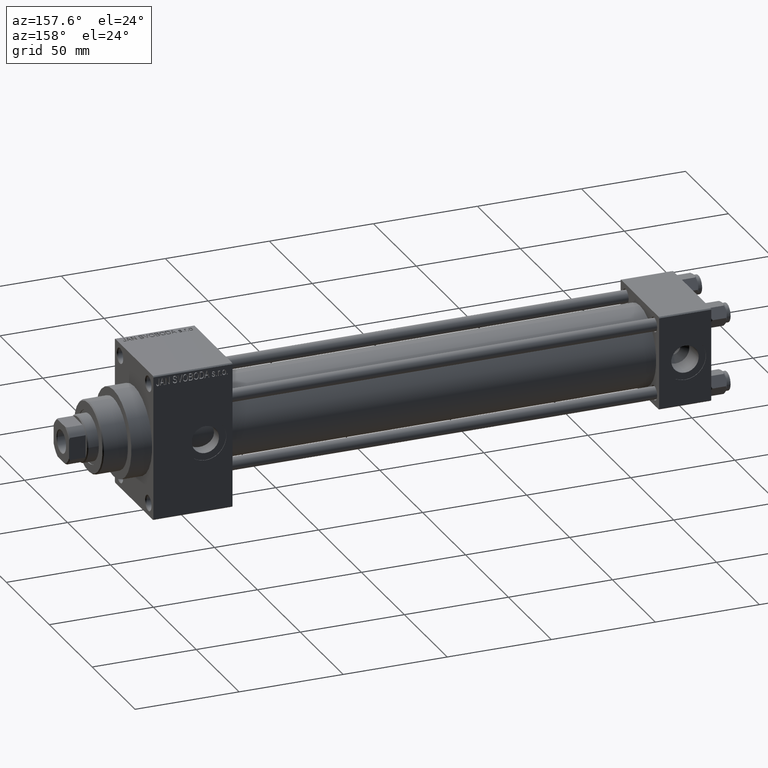
[diagram: clean part render]
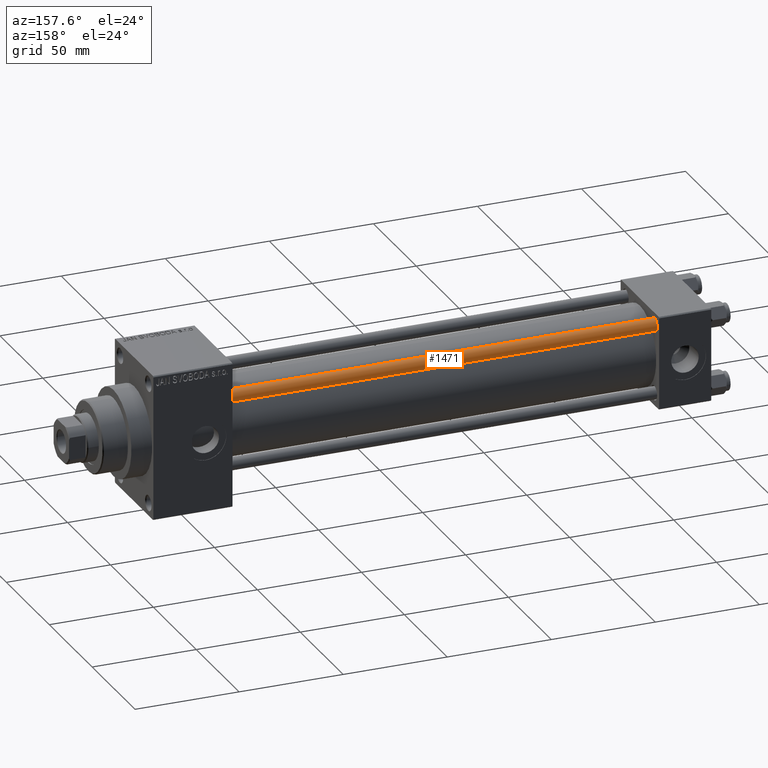
[diagram: same view with one face highlighted and labeled with its STEP entity id]
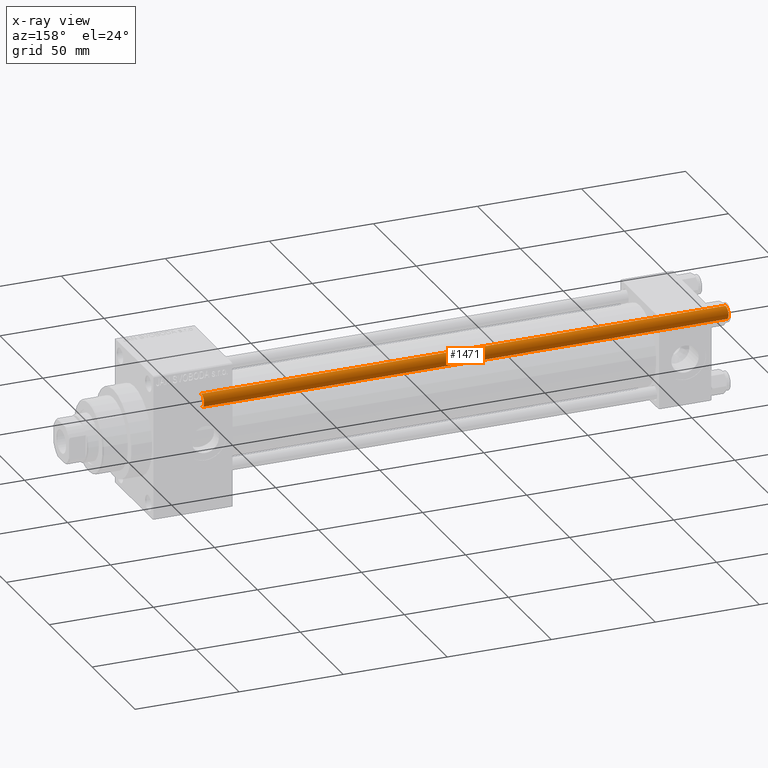
[diagram: x-ray of the same camera — body ghosted, the highlighted face saturated]
A machine part, auxiliary view. The second image highlights one B-rep face of the part: STEP entity #1471.
The next image is the same camera in x-ray: the body ghosted, the highlighted face saturated — about 0% of this face is hidden behind the body in this view.
In plain terms, the highlighted cylindrical surface (edge-blend (fillet) strip) has radius 3 mm, axis along (-1, -0, 0).
Its self-contained STEP definition (entity closure, byte-faithful):
#207 = AXIS2_PLACEMENT_3D ( 'NONE', #10874, #37432, #37679 ) ;
#311 = DIRECTION ( 'NONE',  ( 0.000000000000000000, 0.000000000000000000, -1.000000000000000000 ) ) ;
#509 = VERTEX_POINT ( 'NONE', #5020 ) ;
#1273 = EDGE_CURVE ( 'NONE', #509, #39043, #43670, .T. ) ;
#1471 = ADVANCED_FACE ( 'NONE', ( #10431 ), #36508, .T. ) ;
#2990 = DIRECTION ( 'NONE',  ( -0.000000000000000000, -0.000000000000000000, -1.000000000000000000 ) ) ;
#5020 = CARTESIAN_POINT ( 'NONE',  ( -3.000000000000000444, 0.000000000000000000, 252.4999999999999432 ) ) ;
#6737 = EDGE_CURVE ( 'NONE', #39043, #10309, #11516, .T. ) ;
#6899 = CARTESIAN_POINT ( 'NONE',  ( -3.000000000000000444, 0.000000000000000000, 253.0000000000000000 ) ) ;
#9937 = ORIENTED_EDGE ( 'NONE', *, *, #6737, .T. ) ;
#10309 = VERTEX_POINT ( 'NONE', #19013 ) ;
#10431 = FACE_OUTER_BOUND ( 'NONE', #43819, .T. ) ;
#10874 = CARTESIAN_POINT ( 'NONE',  ( 0.000000000000000000, 0.000000000000000000, 0.5000000000000559552 ) ) ;
#10977 = DIRECTION ( 'NONE',  ( 1.000000000000000000, 0.000000000000000000, 0.000000000000000000 ) ) ;
#11162 = VERTEX_POINT ( 'NONE', #17267 ) ;
#11516 = LINE ( 'NONE', #15977, #23434 ) ;
#15430 = CARTESIAN_POINT ( 'NONE',  ( 0.000000000000000000, 0.000000000000000000, 252.4999999999999432 ) ) ;
#15977 = CARTESIAN_POINT ( 'NONE',  ( 3.000000000000000444, 3.673940397442060361E-16, 253.0000000000000000 ) ) ;
#17267 = CARTESIAN_POINT ( 'NONE',  ( -3.000000000000000444, 0.000000000000000000, 0.5000000000000559552 ) ) ;
#17613 = ORIENTED_EDGE ( 'NONE', *, *, #1273, .T. ) ;
#18296 = DIRECTION ( 'NONE',  ( -0.000000000000000000, -0.000000000000000000, -1.000000000000000000 ) ) ;
#19013 = CARTESIAN_POINT ( 'NONE',  ( 3.000000000000000444, 3.673940397442060361E-16, 0.5000000000000559552 ) ) ;
#20220 = ORIENTED_EDGE ( 'NONE', *, *, #26487, .F. ) ;
#23434 = VECTOR ( 'NONE', #42292, 1000.000000000000000 ) ;
#25551 = CARTESIAN_POINT ( 'NONE',  ( 0.000000000000000000, 0.000000000000000000, 253.0000000000000000 ) ) ;
#25736 = LINE ( 'NONE', #6899, #37453 ) ;
#26487 = EDGE_CURVE ( 'NONE', #509, #11162, #25736, .T. ) ;
#27226 = ORIENTED_EDGE ( 'NONE', *, *, #31151, .T. ) ;
#31151 = EDGE_CURVE ( 'NONE', #10309, #11162, #45389, .T. ) ;
#34461 = CARTESIAN_POINT ( 'NONE',  ( 3.000000000000000444, 3.673940397442060361E-16, 252.4999999999999432 ) ) ;
#34932 = AXIS2_PLACEMENT_3D ( 'NONE', #25551, #2990, #47209 ) ;
#36508 = CYLINDRICAL_SURFACE ( 'NONE', #34932, 3.000000000000000444 ) ;
#37432 = DIRECTION ( 'NONE',  ( -0.000000000000000000, -0.000000000000000000, 1.000000000000000000 ) ) ;
#37453 = VECTOR ( 'NONE', #18296, 1000.000000000000000 ) ;
#37679 = DIRECTION ( 'NONE',  ( 1.000000000000000000, 0.000000000000000000, 0.000000000000000000 ) ) ;
#39043 = VERTEX_POINT ( 'NONE', #34461 ) ;
#41281 = AXIS2_PLACEMENT_3D ( 'NONE', #15430, #311, #10977 ) ;
#42292 = DIRECTION ( 'NONE',  ( -0.000000000000000000, -0.000000000000000000, -1.000000000000000000 ) ) ;
#43670 = CIRCLE ( 'NONE', #41281, 3.000000000000000444 ) ;
#43819 = EDGE_LOOP ( 'NONE', ( #17613, #9937, #27226, #20220 ) ) ;
#45389 = CIRCLE ( 'NONE', #207, 3.000000000000000444 ) ;
#47209 = DIRECTION ( 'NONE',  ( -1.000000000000000000, 0.000000000000000000, 0.000000000000000000 ) ) ;